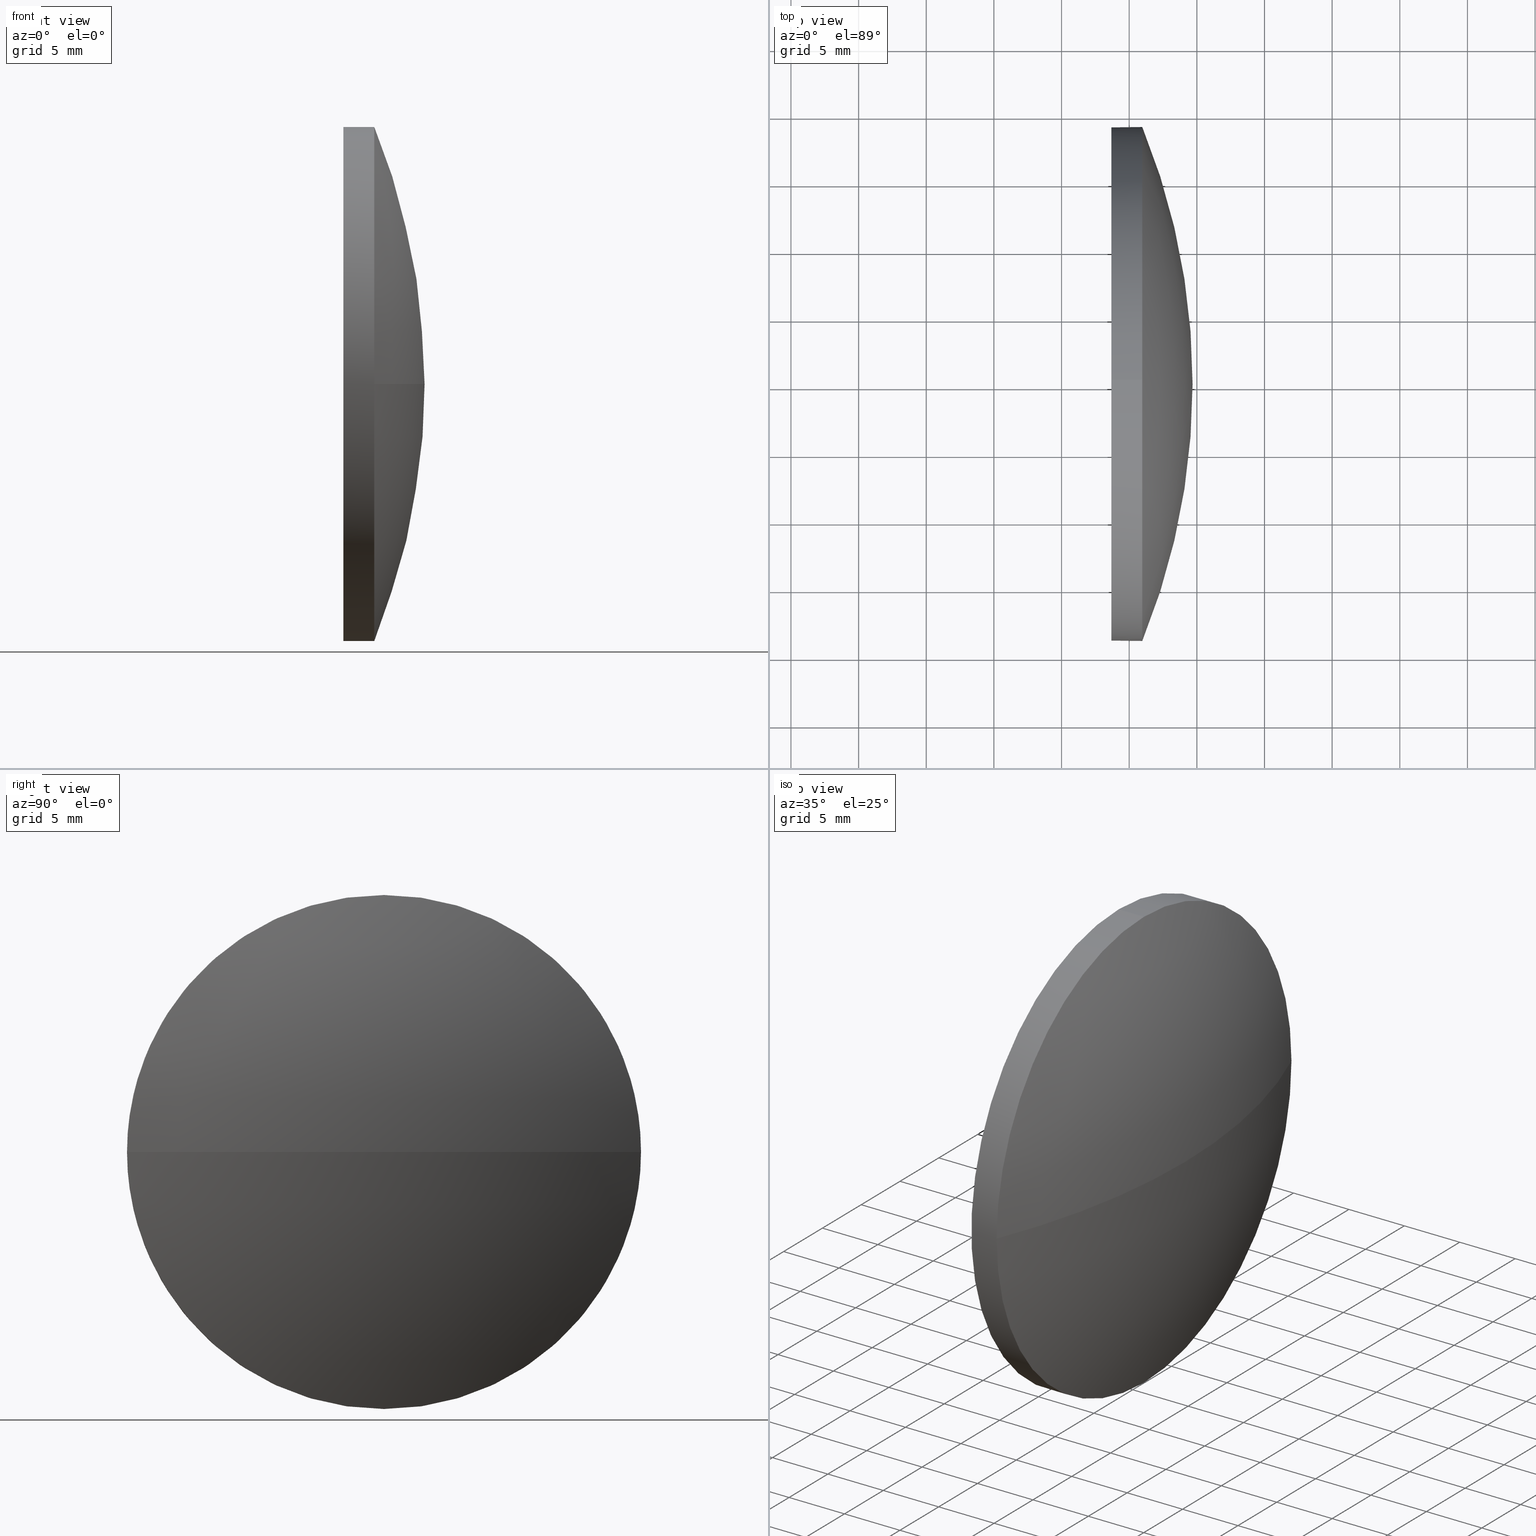
[diagram: canonical four-view strip — front | top / right | iso, engineering-drawing reading convention]
A machine part, canonical four-view strip (front | top / right | iso — engineering-drawing reading convention). The complete STEP part file that produces these views, byte-faithful:
ISO-10303-21;
HEADER;
FILE_DESCRIPTION (( 'STEP AP214' ),
    '1' );
FILE_NAME ('140492.STEP',
    '2022-03-25T06:05:34',
    ( '' ),
    ( '' ),
    'SwSTEP 2.0',
    'SolidWorks 2020',
    '' );
FILE_SCHEMA (( 'AUTOMOTIVE_DESIGN' ));
ENDSEC;

DATA;
#1 = ORIENTED_EDGE ( 'NONE', *, *, #15, .F. ) ;
#2 = AXIS2_PLACEMENT_3D ( 'NONE', #157, #112, #14 ) ;
#3 = FACE_OUTER_BOUND ( 'NONE', #34, .T. ) ;
#4 = VERTEX_POINT ( 'NONE', #48 ) ;
#5 = DIRECTION ( 'NONE',  ( -0.000000000000000000, 0.000000000000000000, 1.000000000000000000 ) ) ;
#6 = EDGE_LOOP ( 'NONE', ( #81, #63 ) ) ;
#7 = AXIS2_PLACEMENT_3D ( 'NONE', #155, #38, #40 ) ;
#8 = MECHANICAL_DESIGN_GEOMETRIC_PRESENTATION_REPRESENTATION (  '', ( #122 ), #116 ) ;
#9 = PRESENTATION_STYLE_ASSIGNMENT (( #167 ) ) ;
#10 = CARTESIAN_POINT ( 'NONE',  ( 2690.967891092362606, -224.9176971297049761, 18.99524358284340764 ) ) ;
#11 = EDGE_CURVE ( 'NONE', #123, #4, #12, .T. ) ;
#12 = CIRCLE ( 'NONE', #74, 18.99524358284340764 ) ;
#13 = CARTESIAN_POINT ( 'NONE',  ( 2681.918207452240949, -224.9176971297049761, 0.000000000000000000 ) ) ;
#14 = DIRECTION ( 'NONE',  ( 0.000000000000000000, 0.000000000000000000, 1.000000000000000000 ) ) ;
#15 = EDGE_CURVE ( 'NONE', #126, #47, #105, .T. ) ;
#16 = SHAPE_DEFINITION_REPRESENTATION ( #31, #129 ) ;
#17 = AXIS2_PLACEMENT_3D ( 'NONE', #154, #85, #142 ) ;
#18 = ORIENTED_EDGE ( 'NONE', *, *, #127, .F. ) ;
#19 = VERTEX_POINT ( 'NONE', #80 ) ;
#20 =( GEOMETRIC_REPRESENTATION_CONTEXT ( 3 ) GLOBAL_UNCERTAINTY_ASSIGNED_CONTEXT ( ( #25 ) ) GLOBAL_UNIT_ASSIGNED_CONTEXT ( ( #84, #143, #146 ) ) REPRESENTATION_CONTEXT ( 'NONE', 'WORKASPACE' ) );
#21 = DIRECTION ( 'NONE',  ( -1.000000000000000000, -0.000000000000000000, -0.000000000000000000 ) ) ;
#22 = DIRECTION ( 'NONE',  ( 0.000000000000000000, 0.000000000000000000, 1.000000000000000000 ) ) ;
#23 = ORIENTED_EDGE ( 'NONE', *, *, #78, .T. ) ;
#24 = AXIS2_PLACEMENT_3D ( 'NONE', #114, #66, #28 ) ;
#25 = UNCERTAINTY_MEASURE_WITH_UNIT (LENGTH_MEASURE( 1.000000000000000082E-05 ), #84, 'distance_accuracy_value', 'NONE');
#26 =( NAMED_UNIT ( * ) PLANE_ANGLE_UNIT ( ) SI_UNIT ( $, .RADIAN. ) );
#27 = ADVANCED_FACE ( 'NONE', ( #75 ), #139, .T. ) ;
#28 = DIRECTION ( 'NONE',  ( 0.000000000000000000, 0.000000000000000000, 1.000000000000000000 ) ) ;
#29 = FACE_OUTER_BOUND ( 'NONE', #124, .T. ) ;
#30 = PRESENTATION_LAYER_ASSIGNMENT (  '', '', ( #122 ) ) ;
#31 = PRODUCT_DEFINITION_SHAPE ( 'NONE', 'NONE',  #120 ) ;
#32 = APPLICATION_PROTOCOL_DEFINITION ( 'draft international standard', 'automotive_design', 1998, #62 ) ;
#33 = ORIENTED_EDGE ( 'NONE', *, *, #132, .T. ) ;
#34 = EDGE_LOOP ( 'NONE', ( #93, #65, #108, #162 ) ) ;
#35 = ORIENTED_EDGE ( 'NONE', *, *, #97, .T. ) ;
#36 = ORIENTED_EDGE ( 'NONE', *, *, #185, .T. ) ;
#37 = DIRECTION ( 'NONE',  ( -1.000000000000000000, -0.000000000000000000, -0.000000000000000000 ) ) ;
#38 = DIRECTION ( 'NONE',  ( -0.000000000000000000, 0.000000000000000000, -1.000000000000000000 ) ) ;
#39 = EDGE_CURVE ( 'NONE', #153, #152, #43, .T. ) ;
#40 = DIRECTION ( 'NONE',  ( 0.000000000000000000, 1.000000000000000000, 0.000000000000000000 ) ) ;
#41 =( NAMED_UNIT ( * ) PLANE_ANGLE_UNIT ( ) SI_UNIT ( $, .RADIAN. ) );
#42 = PRODUCT ( '140492', '140492', '', ( #86 ) ) ;
#43 = CIRCLE ( 'NONE', #89, 50.38527799999981482 ) ;
#44 = CARTESIAN_POINT ( 'NONE',  ( 2690.967891092362606, -224.9176971297049761, 0.000000000000000000 ) ) ;
#45 = ADVANCED_FACE ( 'NONE', ( #3 ), #90, .T. ) ;
#46 = ORIENTED_EDGE ( 'NONE', *, *, #73, .F. ) ;
#47 = VERTEX_POINT ( 'NONE', #150 ) ;
#48 = CARTESIAN_POINT ( 'NONE',  ( 2690.967891092362606, -243.9129407125483340, -2.326246425275342567E-15 ) ) ;
#49 = CARTESIAN_POINT ( 'NONE',  ( 2644.300376048536691, -224.9176971297049761, 0.000000000000000000 ) ) ;
#50 = AXIS2_PLACEMENT_3D ( 'NONE', #99, #52, #83 ) ;
#51 = FILL_AREA_STYLE ('',( #141 ) ) ;
#52 = DIRECTION ( 'NONE',  ( -1.000000000000000000, -0.000000000000000000, -0.000000000000000000 ) ) ;
#53 = AXIS2_PLACEMENT_3D ( 'NONE', #13, #182, #98 ) ;
#54 = EDGE_CURVE ( 'NONE', #152, #123, #59, .T. ) ;
#55 = SURFACE_STYLE_FILL_AREA ( #118 ) ;
#56 =( GEOMETRIC_REPRESENTATION_CONTEXT ( 3 ) GLOBAL_UNCERTAINTY_ASSIGNED_CONTEXT ( ( #67 ) ) GLOBAL_UNIT_ASSIGNED_CONTEXT ( ( #156, #26, #171 ) ) REPRESENTATION_CONTEXT ( 'NONE', 'WORKASPACE' ) );
#57 = ADVANCED_FACE ( 'NONE', ( #138 ), #133, .T. ) ;
#58 = DIRECTION ( 'NONE',  ( 1.000000000000000000, 0.000000000000000000, 0.000000000000000000 ) ) ;
#59 = CIRCLE ( 'NONE', #102, 18.99524358284340764 ) ;
#60 = ORIENTED_EDGE ( 'NONE', *, *, #15, .T. ) ;
#61 = DIRECTION ( 'NONE',  ( -1.000000000000000000, 0.000000000000000000, -0.000000000000000000 ) ) ;
#62 = APPLICATION_CONTEXT ( 'automotive_design' ) ;
#63 = ORIENTED_EDGE ( 'NONE', *, *, #127, .T. ) ;
#64 = VECTOR ( 'NONE', #37, 1000.000000000000000 ) ;
#65 = ORIENTED_EDGE ( 'NONE', *, *, #39, .T. ) ;
#66 = DIRECTION ( 'NONE',  ( -1.000000000000000000, -0.000000000000000000, -0.000000000000000000 ) ) ;
#67 = UNCERTAINTY_MEASURE_WITH_UNIT (LENGTH_MEASURE( 1.000000000000000082E-05 ), #156, 'distance_accuracy_value', 'NONE');
#68 = APPLICATION_CONTEXT ( 'automotive_design' ) ;
#69 = AXIS2_PLACEMENT_3D ( 'NONE', #174, #161, #91 ) ;
#70 = CARTESIAN_POINT ( 'NONE',  ( 2681.918207452240949, -224.9176971297049761, -18.99524358284340764 ) ) ;
#71 = SURFACE_STYLE_FILL_AREA ( #51 ) ;
#72 = APPLICATION_PROTOCOL_DEFINITION ( 'draft international standard', 'automotive_design', 1998, #68 ) ;
#73 = EDGE_CURVE ( 'NONE', #47, #19, #140, .T. ) ;
#74 = AXIS2_PLACEMENT_3D ( 'NONE', #44, #149, #22 ) ;
#75 = FACE_OUTER_BOUND ( 'NONE', #6, .T. ) ;
#76 = EDGE_LOOP ( 'NONE', ( #176, #35, #46, #1, #36 ) ) ;
#77 = AXIS2_PLACEMENT_3D ( 'NONE', #96, #113, #168 ) ;
#78 = EDGE_CURVE ( 'NONE', #153, #4, #145, .T. ) ;
#79 = DIRECTION ( 'NONE',  ( 0.000000000000000000, 0.000000000000000000, 1.000000000000000000 ) ) ;
#80 = CARTESIAN_POINT ( 'NONE',  ( 2688.685654048536435, -224.9176971297049761, -18.99524358284340764 ) ) ;
#81 = ORIENTED_EDGE ( 'NONE', *, *, #73, .T. ) ;
#82 = CYLINDRICAL_SURFACE ( 'NONE', #17, 18.99524358284340764 ) ;
#83 = DIRECTION ( 'NONE',  ( 0.000000000000000000, 0.000000000000000000, 1.000000000000000000 ) ) ;
#84 =( LENGTH_UNIT ( ) NAMED_UNIT ( * ) SI_UNIT ( .MILLI., .METRE. ) );
#85 = DIRECTION ( 'NONE',  ( -1.000000000000000000, -0.000000000000000000, -0.000000000000000000 ) ) ;
#86 = PRODUCT_CONTEXT ( 'NONE', #68, 'mechanical' ) ;
#87 = CLOSED_SHELL ( 'NONE', ( #107, #57, #27, #45, #101 ) ) ;
#88 = FILL_AREA_STYLE_COLOUR ( '', #92 ) ;
#89 = AXIS2_PLACEMENT_3D ( 'NONE', #136, #5, #58 ) ;
#90 = SPHERICAL_SURFACE ( 'NONE', #69, 50.38527799999996404 ) ;
#91 = DIRECTION ( 'NONE',  ( 0.000000000000000000, 1.000000000000000000, 0.000000000000000000 ) ) ;
#92 = COLOUR_RGB ( '',1.000000000000000000, 1.000000000000000000, 1.000000000000000000 ) ;
#93 = ORIENTED_EDGE ( 'NONE', *, *, #78, .F. ) ;
#94 = ORIENTED_EDGE ( 'NONE', *, *, #97, .F. ) ;
#95 = FACE_OUTER_BOUND ( 'NONE', #76, .T. ) ;
#96 = CARTESIAN_POINT ( 'NONE',  ( 2690.967891092362606, -224.9176971297049761, 0.000000000000000000 ) ) ;
#97 = EDGE_CURVE ( 'NONE', #123, #19, #110, .T. ) ;
#98 = DIRECTION ( 'NONE',  ( 0.000000000000000000, 0.000000000000000000, 1.000000000000000000 ) ) ;
#99 = CARTESIAN_POINT ( 'NONE',  ( 2688.685654048536435, -224.9176971297049761, 0.000000000000000000 ) ) ;
#100 = SURFACE_STYLE_USAGE ( .BOTH. , #184 ) ;
#101 = ADVANCED_FACE ( 'NONE', ( #29 ), #82, .T. ) ;
#102 = AXIS2_PLACEMENT_3D ( 'NONE', #121, #21, #79 ) ;
#103 = PRODUCT_DEFINITION_FORMATION_WITH_SPECIFIED_SOURCE ( '�κ�', '', #42, .NOT_KNOWN. ) ;
#104 = CARTESIAN_POINT ( 'NONE',  ( 2688.685654048536435, 0.000000000000000000, 0.000000000000000000 ) ) ;
#105 = LINE ( 'NONE', #109, #64 ) ;
#106 = ORIENTED_EDGE ( 'NONE', *, *, #54, .F. ) ;
#107 = ADVANCED_FACE ( 'NONE', ( #95 ), #147, .T. ) ;
#108 = ORIENTED_EDGE ( 'NONE', *, *, #185, .F. ) ;
#109 = CARTESIAN_POINT ( 'NONE',  ( 2681.918207452240949, -224.9176971297049761, 18.99524358284340764 ) ) ;
#110 = LINE ( 'NONE', #70, #119 ) ;
#111 = MECHANICAL_DESIGN_GEOMETRIC_PRESENTATION_REPRESENTATION (  '', ( #186 ), #56 ) ;
#112 = DIRECTION ( 'NONE',  ( -1.000000000000000000, -0.000000000000000000, -0.000000000000000000 ) ) ;
#113 = DIRECTION ( 'NONE',  ( -1.000000000000000000, -0.000000000000000000, -0.000000000000000000 ) ) ;
#114 = CARTESIAN_POINT ( 'NONE',  ( 2688.685654048536435, -224.9176971297049761, 0.000000000000000000 ) ) ;
#115 = AXIS2_PLACEMENT_3D ( 'NONE', #49, #180, #165 ) ;
#116 =( GEOMETRIC_REPRESENTATION_CONTEXT ( 3 ) GLOBAL_UNCERTAINTY_ASSIGNED_CONTEXT ( ( #128 ) ) GLOBAL_UNIT_ASSIGNED_CONTEXT ( ( #117, #41, #158 ) ) REPRESENTATION_CONTEXT ( 'NONE', 'WORKASPACE' ) );
#117 =( LENGTH_UNIT ( ) NAMED_UNIT ( * ) SI_UNIT ( .MILLI., .METRE. ) );
#118 = FILL_AREA_STYLE ('',( #88 ) ) ;
#119 = VECTOR ( 'NONE', #181, 1000.000000000000000 ) ;
#120 = PRODUCT_DEFINITION ( 'δ֪', '', #103, #144 ) ;
#121 = CARTESIAN_POINT ( 'NONE',  ( 2690.967891092362606, -224.9176971297049761, 0.000000000000000000 ) ) ;
#122 = STYLED_ITEM ( 'NONE', ( #148 ), #129 ) ;
#123 = VERTEX_POINT ( 'NONE', #183 ) ;
#124 = EDGE_LOOP ( 'NONE', ( #94, #178, #33, #60, #18 ) ) ;
#125 = ORIENTED_EDGE ( 'NONE', *, *, #11, .F. ) ;
#126 = VERTEX_POINT ( 'NONE', #10 ) ;
#127 = EDGE_CURVE ( 'NONE', #19, #47, #159, .T. ) ;
#128 = UNCERTAINTY_MEASURE_WITH_UNIT (LENGTH_MEASURE( 1.000000000000000082E-05 ), #117, 'distance_accuracy_value', 'NONE');
#129 = ADVANCED_BREP_SHAPE_REPRESENTATION ( '140492', ( #179, #151 ), #20 ) ;
#130 = CARTESIAN_POINT ( 'NONE',  ( 2690.967891092362606, -205.9224535468616182, 0.000000000000000000 ) ) ;
#131 = SURFACE_SIDE_STYLE ('',( #71 ) ) ;
#132 = EDGE_CURVE ( 'NONE', #4, #126, #166, .T. ) ;
#133 = SPHERICAL_SURFACE ( 'NONE', #7, 50.38527799999996404 ) ;
#134 = PRESENTATION_LAYER_ASSIGNMENT (  '', '', ( #186 ) ) ;
#135 = CARTESIAN_POINT ( 'NONE',  ( 0.000000000000000000, 0.000000000000000000, 0.000000000000000000 ) ) ;
#136 = CARTESIAN_POINT ( 'NONE',  ( 2644.300376048536691, -224.9176971297049761, 0.000000000000000000 ) ) ;
#137 = CIRCLE ( 'NONE', #77, 18.99524358284340764 ) ;
#138 = FACE_OUTER_BOUND ( 'NONE', #164, .T. ) ;
#139 = PLANE ( 'NONE',  #170 ) ;
#140 = CIRCLE ( 'NONE', #50, 18.99524358284340764 ) ;
#141 = FILL_AREA_STYLE_COLOUR ( '', #163 ) ;
#142 = DIRECTION ( 'NONE',  ( 0.000000000000000000, 0.000000000000000000, 1.000000000000000000 ) ) ;
#143 =( NAMED_UNIT ( * ) PLANE_ANGLE_UNIT ( ) SI_UNIT ( $, .RADIAN. ) );
#144 = PRODUCT_DEFINITION_CONTEXT ( 'detailed design', #62, 'design' ) ;
#145 = CIRCLE ( 'NONE', #115, 50.38527799999994983 ) ;
#146 =( NAMED_UNIT ( * ) SI_UNIT ( $, .STERADIAN. ) SOLID_ANGLE_UNIT ( ) );
#147 = CYLINDRICAL_SURFACE ( 'NONE', #53, 18.99524358284340764 ) ;
#148 = PRESENTATION_STYLE_ASSIGNMENT (( #100 ) ) ;
#149 = DIRECTION ( 'NONE',  ( -1.000000000000000000, -0.000000000000000000, -0.000000000000000000 ) ) ;
#150 = CARTESIAN_POINT ( 'NONE',  ( 2688.685654048536435, -224.9176971297049761, 18.99524358284340764 ) ) ;
#151 = AXIS2_PLACEMENT_3D ( 'NONE', #135, #172, #173 ) ;
#152 = VERTEX_POINT ( 'NONE', #130 ) ;
#153 = VERTEX_POINT ( 'NONE', #169 ) ;
#154 = CARTESIAN_POINT ( 'NONE',  ( 2681.918207452240949, -224.9176971297049761, 0.000000000000000000 ) ) ;
#155 = CARTESIAN_POINT ( 'NONE',  ( 2644.300376048536691, -224.9176971297049761, 0.000000000000000000 ) ) ;
#156 =( LENGTH_UNIT ( ) NAMED_UNIT ( * ) SI_UNIT ( .MILLI., .METRE. ) );
#157 = CARTESIAN_POINT ( 'NONE',  ( 2690.967891092362606, -224.9176971297049761, 0.000000000000000000 ) ) ;
#158 =( NAMED_UNIT ( * ) SI_UNIT ( $, .STERADIAN. ) SOLID_ANGLE_UNIT ( ) );
#159 = CIRCLE ( 'NONE', #24, 18.99524358284340764 ) ;
#160 = DIRECTION ( 'NONE',  ( -0.000000000000000000, 0.000000000000000000, 1.000000000000000000 ) ) ;
#161 = DIRECTION ( 'NONE',  ( -0.000000000000000000, 0.000000000000000000, -1.000000000000000000 ) ) ;
#162 = ORIENTED_EDGE ( 'NONE', *, *, #132, .F. ) ;
#163 = COLOUR_RGB ( '',1.000000000000000000, 1.000000000000000000, 1.000000000000000000 ) ;
#164 = EDGE_LOOP ( 'NONE', ( #177, #23, #125, #106 ) ) ;
#165 = DIRECTION ( 'NONE',  ( 0.000000000000000000, 1.000000000000000000, 1.224646799147353700E-16 ) ) ;
#166 = CIRCLE ( 'NONE', #2, 18.99524358284340764 ) ;
#167 = SURFACE_STYLE_USAGE ( .BOTH. , #131 ) ;
#168 = DIRECTION ( 'NONE',  ( 0.000000000000000000, 0.000000000000000000, 1.000000000000000000 ) ) ;
#169 = CARTESIAN_POINT ( 'NONE',  ( 2694.685654048536435, -224.9176971297049761, 0.000000000000000000 ) ) ;
#170 = AXIS2_PLACEMENT_3D ( 'NONE', #104, #61, #160 ) ;
#171 =( NAMED_UNIT ( * ) SI_UNIT ( $, .STERADIAN. ) SOLID_ANGLE_UNIT ( ) );
#172 = DIRECTION ( 'NONE',  ( 0.000000000000000000, 0.000000000000000000, 1.000000000000000000 ) ) ;
#173 = DIRECTION ( 'NONE',  ( 1.000000000000000000, 0.000000000000000000, 0.000000000000000000 ) ) ;
#174 = CARTESIAN_POINT ( 'NONE',  ( 2644.300376048536691, -224.9176971297049761, 0.000000000000000000 ) ) ;
#175 = PRODUCT_RELATED_PRODUCT_CATEGORY ( 'part', '', ( #42 ) ) ;
#176 = ORIENTED_EDGE ( 'NONE', *, *, #54, .T. ) ;
#177 = ORIENTED_EDGE ( 'NONE', *, *, #39, .F. ) ;
#178 = ORIENTED_EDGE ( 'NONE', *, *, #11, .T. ) ;
#179 = MANIFOLD_SOLID_BREP ( '��ת1', #87 ) ;
#180 = DIRECTION ( 'NONE',  ( 0.000000000000000000, 1.224646799147353207E-16, -1.000000000000000000 ) ) ;
#181 = DIRECTION ( 'NONE',  ( -1.000000000000000000, -0.000000000000000000, -0.000000000000000000 ) ) ;
#182 = DIRECTION ( 'NONE',  ( -1.000000000000000000, -0.000000000000000000, -0.000000000000000000 ) ) ;
#183 = CARTESIAN_POINT ( 'NONE',  ( 2690.967891092362606, -224.9176971297049761, -18.99524358284340764 ) ) ;
#184 = SURFACE_SIDE_STYLE ('',( #55 ) ) ;
#185 = EDGE_CURVE ( 'NONE', #126, #152, #137, .T. ) ;
#186 = STYLED_ITEM ( 'NONE', ( #9 ), #179 ) ;
ENDSEC;
END-ISO-10303-21;
